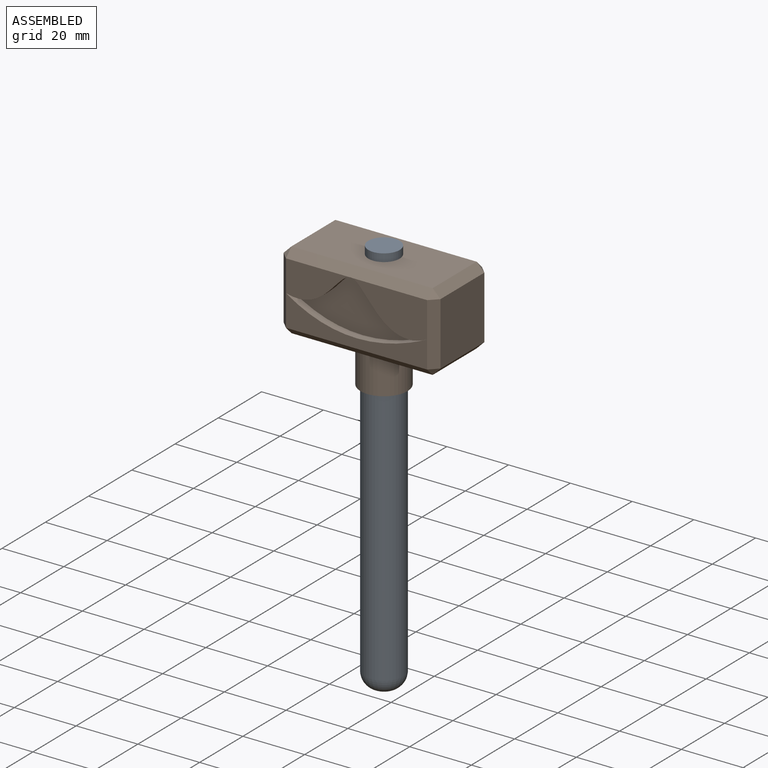
[diagram: assembled view]
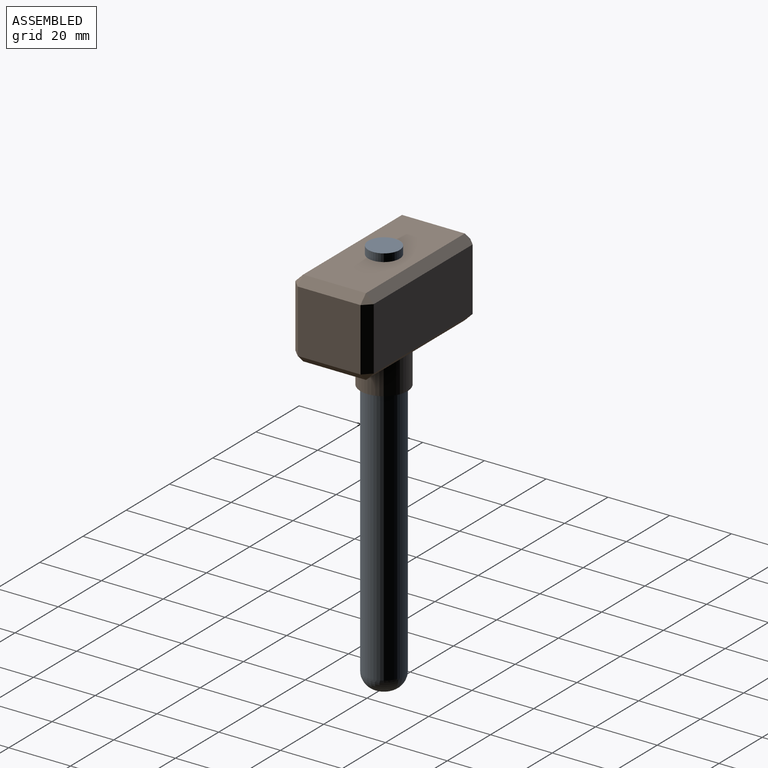
[diagram: assembled view, second angle]
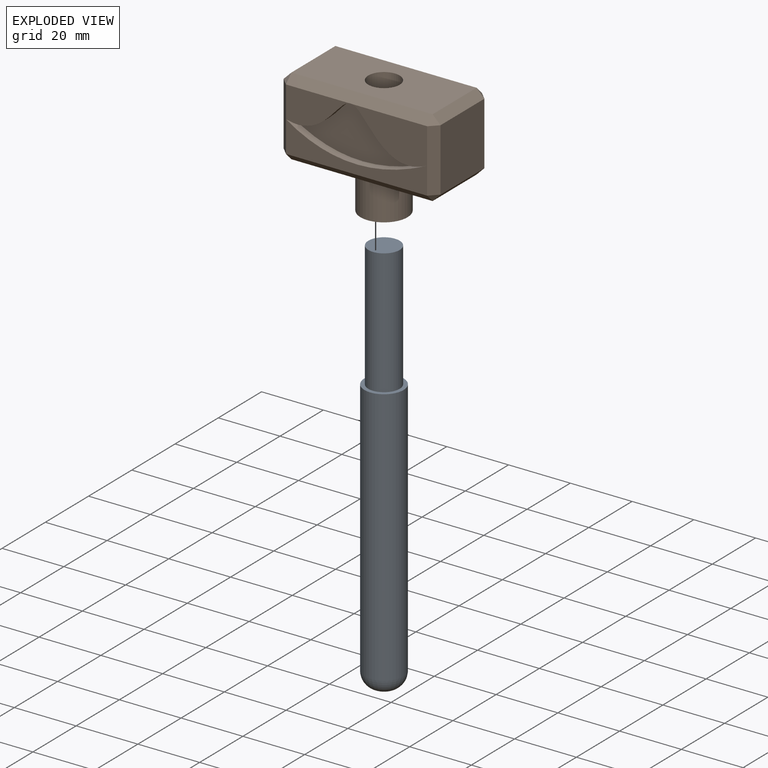
[diagram: exploded view]
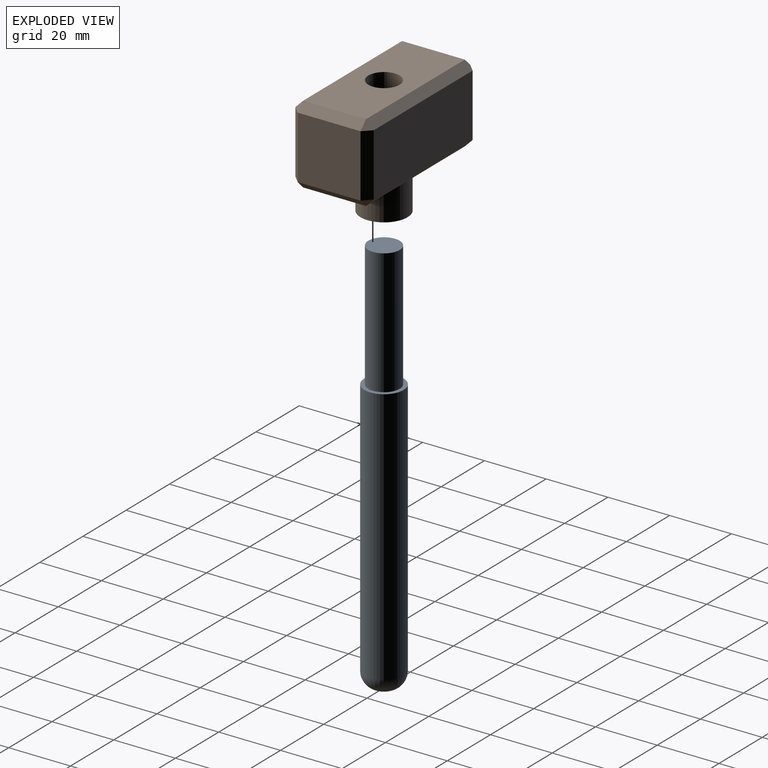
[diagram: exploded view, second angle]
ASSEMBLY  parts=2 mates=2
PART A: 6 faces, bbox 12.7x12.7x129.5 mm
  f0: cylinder r=6.35mm len=83.82mm, axis (0,0,-1), area 3344.3mm2, adj f1,f5
  f1: plane 12.7x12.7mm, normal (0,0,1), area 45.6mm2, adj f0,f3
  f2: plane 2.54x2.54mm, normal (0,0,-1), area 5.1mm2, adj f5
  f3: cylinder r=5.08mm len=40.64mm, axis (0,0,-1), area 1297.2mm2, adj f1,f4
  f4: plane 10.16x10.16mm, normal (0,0,1), area 81.1mm2, adj f3
  f5: torus R=1.27mm, axis (0,0,1), area 225.8mm2, adj f0,f2
PART B: 34 faces, bbox 50.8x25.4x38.1 mm
  f0: plane 22.24x13.88mm, normal (0,-1,0), area 148.9mm2, adj f2,f25,f31
  f1: plane 26.95x17.97mm, normal (0,-1,0), area 223.5mm2, adj f2,f15,f31
  f2: plane 45.76x2.58mm, normal (0,-0.71,0.71), area 164.2mm2, adj f0,f1,f6,f21,f28,f31
  f3: plane 20.32x20.32mm, normal (-1,0,0), area 412.9mm2, adj f17,f25,f26,f30
  f4: plane 45.72x20.32mm, normal (0,0,-1), area 746.6mm2, adj f9,f12,f16,f17,f18
  f5: plane 20.32x20.32mm, normal (1,0,0), area 412.9mm2, adj f12,f15,f19,f20
  f6: plane 45.72x20.32mm, normal (0,0,1), area 848mm2, adj f2,f11,f20,f27,f30
  f7: plane 45.72x10.16mm, normal (0,-1,0), area 236.6mm2, adj f15,f16,f25,f32
  f8: plane 45.72x20.32mm, normal (0,1,0), area 929mm2, adj f18,f19,f26,f27
  f9: cylinder r=7.62mm len=15.24mm, axis (0,0,1), area 608mm2, adj f4,f10
  f10: plane 15.24x15.24mm, normal (0,0,-1), area 101.3mm2, adj f9,f11
  f11: cylinder r=5.08mm len=38.1mm, axis (0,0,-1), area 1216.1mm2, adj f6,f10
  f12: plane 20.32x2.54mm, normal (0.71,0,-0.71), area 73mm2, adj f4,f5,f13,f14
  f13: plane 2.54x2.54mm, normal (0.58,-0.58,-0.58), area 5.6mm2, adj f12,f15,f16
  f14: plane 2.54x2.54mm, normal (0.58,0.58,-0.58), area 5.6mm2, adj f12,f18,f19
  f15: plane 20.32x2.54mm, normal (0.71,-0.71,0), area 73mm2, adj f1,f5,f7,f13,f21
  f16: plane 45.72x2.54mm, normal (0,-0.71,-0.71), area 164.2mm2, adj f4,f7,f13,f22
  f17: plane 20.32x2.54mm, normal (-0.71,0,-0.71), area 73mm2, adj f3,f4,f22,f23
  f18: plane 45.72x2.54mm, normal (0,0.71,-0.71), area 164.2mm2, adj f4,f8,f14,f23
  f19: plane 20.32x2.54mm, normal (0.71,0.71,0), area 73mm2, adj f5,f8,f14,f24
  f20: plane 20.32x2.54mm, normal (0.71,0,0.71), area 73mm2, adj f5,f6,f21,f24
  f21: plane 2.54x2.54mm, normal (0.58,-0.58,0.58), area 5.6mm2, adj f2,f15,f20
  f22: plane 2.54x2.54mm, normal (-0.58,-0.58,-0.58), area 5.6mm2, adj f16,f17,f25
  f23: plane 2.54x2.54mm, normal (-0.58,0.58,-0.58), area 5.6mm2, adj f17,f18,f26
  f24: plane 2.54x2.54mm, normal (0.58,0.58,0.58), area 5.6mm2, adj f19,f20,f27
  f25: plane 20.32x2.54mm, normal (-0.71,-0.71,0), area 73mm2, adj f0,f3,f7,f22,f28
  f26: plane 20.32x2.54mm, normal (-0.71,0.71,0), area 73mm2, adj f3,f8,f23,f29
  f27: plane 45.72x2.54mm, normal (0,0.71,0.71), area 164.2mm2, adj f6,f8,f24,f29
  f28: plane 2.54x2.54mm, normal (-0.58,-0.58,0.58), area 5.6mm2, adj f2,f25,f30
  f29: plane 2.54x2.54mm, normal (-0.58,0.58,0.58), area 5.6mm2, adj f26,f27,f30
  f30: plane 20.32x2.54mm, normal (-0.71,0,0.71), area 73mm2, adj f3,f6,f28,f29
  f31: extruded ~45.71x13.14mm, area 139.1mm2, adj f0,f1,f2,f32,f33
  f32: extruded ~45.71x7.11mm, area 122.1mm2, adj f7,f31,f33
  f33: plane 45.71x21.04mm, normal (0,-1,0), area 319.5mm2, adj f31,f32
PLACE A t=(15.86,2.63,-138.06)mm
PLACE B t=(-9.54,15.33,-36.46)mm
MATE cylindrical A.f3 <-> B.f9  axis (0,0,-1) through (15.86,2.63,-28.84)mm
MATE fastened B.f9 <-> A.f0  axis (0,0,-1) through (15.86,2.63,-49.16)mm
